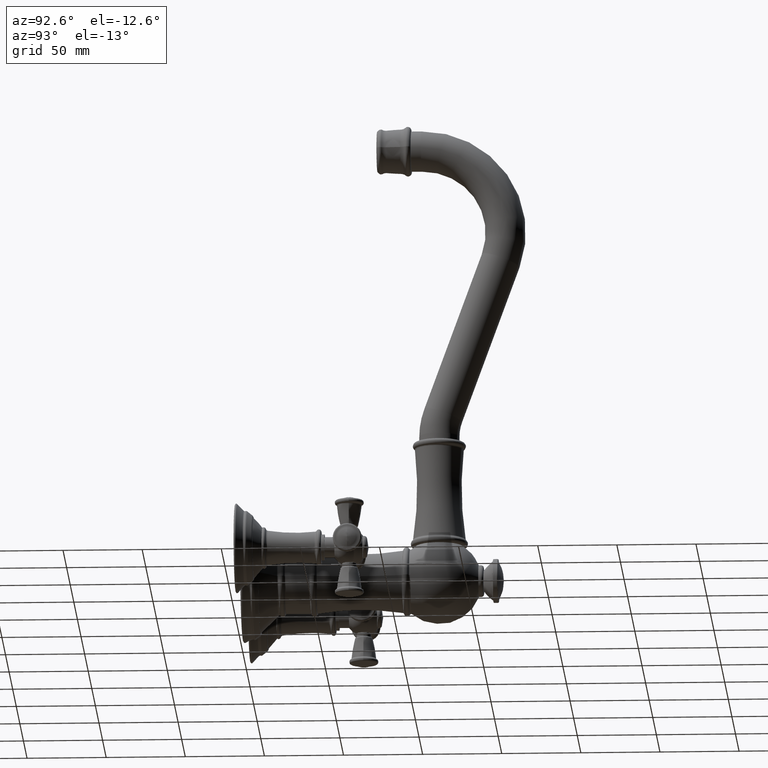
[diagram: clean part render]
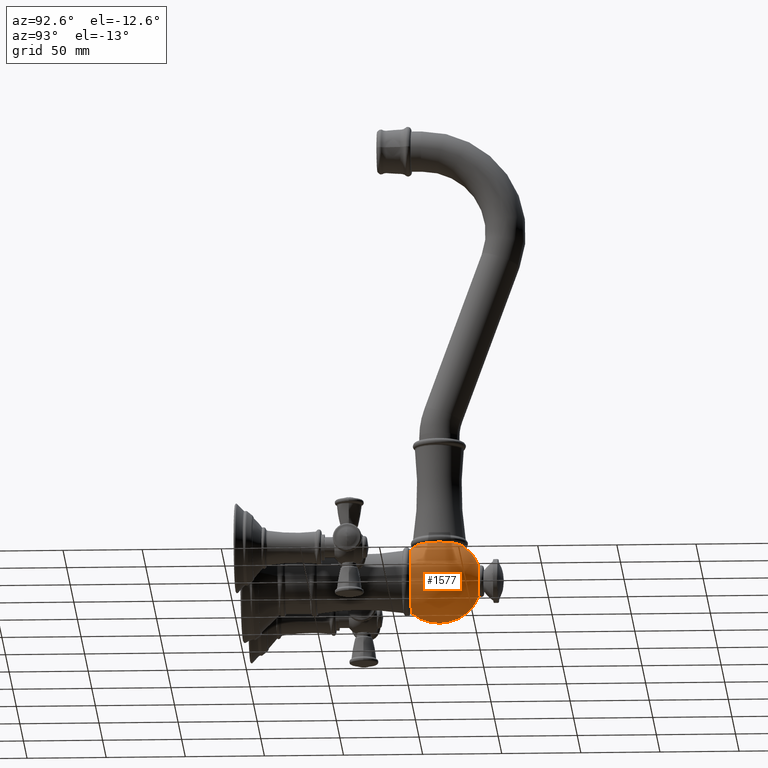
[diagram: same view with one face highlighted and labeled with its STEP entity id]
A machine part, auxiliary view. The second image highlights one B-rep face of the part: STEP entity #1577.
In plain terms, the highlighted spherical surface has radius 26.924 mm.
Its self-contained STEP definition (entity closure, byte-faithful):
#198=CARTESIAN_POINT('',(0.E0,4.890850113780E0,8.7E-1));
#199=DIRECTION('',(0.E0,0.E0,-1.E0));
#200=DIRECTION('',(0.E0,1.E0,0.E0));
#201=AXIS2_PLACEMENT_3D('',#198,#199,#200);
#203=CARTESIAN_POINT('',(0.E0,5.874504016329E0,0.E0));
#204=DIRECTION('',(0.E0,-1.E0,0.E0));
#205=DIRECTION('',(0.E0,0.E0,-1.E0));
#206=AXIS2_PLACEMENT_3D('',#203,#204,#205);
#208=CARTESIAN_POINT('',(0.E0,4.202513046272E0,0.E0));
#209=DIRECTION('',(0.E0,1.E0,0.E0));
#210=DIRECTION('',(1.E0,0.E0,1.860397475812E-9));
#211=AXIS2_PLACEMENT_3D('',#208,#209,#210);
#213=CARTESIAN_POINT('',(0.E0,4.202513046272E0,0.E0));
#214=DIRECTION('',(0.E0,1.E0,0.E0));
#215=DIRECTION('',(0.E0,0.E0,1.E0));
#216=AXIS2_PLACEMENT_3D('',#213,#214,#215);
#223=CARTESIAN_POINT('',(0.E0,4.890850113780E0,0.E0));
#224=DIRECTION('',(-1.E0,0.E0,0.E0));
#225=DIRECTION('',(0.E0,-6.493745919883E-1,7.604686971073E-1));
#226=AXIS2_PLACEMENT_3D('',#223,#224,#225);
#228=CARTESIAN_POINT('',(0.E0,4.890850113780E0,0.E0));
#229=DIRECTION('',(1.E0,0.E0,0.E0));
#230=DIRECTION('',(0.E0,-6.493745919883E-1,-7.604686971073E-1));
#231=AXIS2_PLACEMENT_3D('',#228,#229,#230);
#238=CARTESIAN_POINT('',(0.E0,4.890850113780E0,0.E0));
#239=DIRECTION('',(-1.E0,0.E0,0.E0));
#240=DIRECTION('',(0.E0,5.712807493284E-1,8.207547169811E-1));
#241=AXIS2_PLACEMENT_3D('',#238,#239,#240);
#1101=CARTESIAN_POINT('',(0.E0,5.874504016329E0,-3.95E-1));
#1102=CARTESIAN_POINT('',(0.E0,5.874504016329E0,3.95E-1));
#1103=VERTEX_POINT('',#1101);
#1104=VERTEX_POINT('',#1102);
#1115=CARTESIAN_POINT('',(0.E0,4.202513046272E0,8.060968189337E-1));
#1116=CARTESIAN_POINT('',(8.060968189337E-1,4.202513046272E0,
1.499660532941E-9));
#1117=VERTEX_POINT('',#1115);
#1118=VERTEX_POINT('',#1116);
#1119=CARTESIAN_POINT('',(0.E0,4.202513046272E0,-8.060968189337E-1));
#1120=VERTEX_POINT('',#1119);
#1181=CARTESIAN_POINT('',(0.E0,5.496407708068E0,8.7E-1));
#1182=CARTESIAN_POINT('',(0.E0,4.285292519492E0,8.7E-1));
#1183=VERTEX_POINT('',#1181);
#1184=VERTEX_POINT('',#1182);
#1557=CARTESIAN_POINT('',(0.E0,4.890850113780E0,0.E0));
#1558=DIRECTION('',(0.E0,-1.E0,0.E0));
#1559=DIRECTION('',(0.E0,0.E0,1.E0));
#1560=AXIS2_PLACEMENT_3D('',#1557,#1558,#1559);
#1561=SPHERICAL_SURFACE('',#1560,1.06E0);
#1562=ORIENTED_EDGE('',*,*,#1550,.F.);
#1564=ORIENTED_EDGE('',*,*,#1563,.T.);
#1566=ORIENTED_EDGE('',*,*,#1565,.F.);
#1568=ORIENTED_EDGE('',*,*,#1567,.F.);
#1570=ORIENTED_EDGE('',*,*,#1569,.F.);
#1572=ORIENTED_EDGE('',*,*,#1571,.F.);
#1574=ORIENTED_EDGE('',*,*,#1573,.T.);
#1575=EDGE_LOOP('',(#1562,#1564,#1566,#1568,#1570,#1572,#1574));
#1576=FACE_OUTER_BOUND('',#1575,.F.);
#1577=ADVANCED_FACE('',(#1576),#1561,.T.);
#202=CIRCLE('',#201,6.055575942881E-1);
#207=CIRCLE('',#206,3.95E-1);
#212=CIRCLE('',#211,8.060968189337E-1);
#217=CIRCLE('',#216,8.060968189337E-1);
#227=CIRCLE('',#226,1.06E0);
#232=CIRCLE('',#231,1.06E0);
#242=CIRCLE('',#241,1.06E0);
#1550=EDGE_CURVE('',#1183,#1184,#202,.T.);
#1563=EDGE_CURVE('',#1183,#1104,#242,.T.);
#1565=EDGE_CURVE('',#1103,#1104,#207,.T.);
#1567=EDGE_CURVE('',#1120,#1103,#232,.T.);
#1569=EDGE_CURVE('',#1118,#1120,#212,.T.);
#1571=EDGE_CURVE('',#1117,#1118,#217,.T.);
#1573=EDGE_CURVE('',#1117,#1184,#227,.T.);